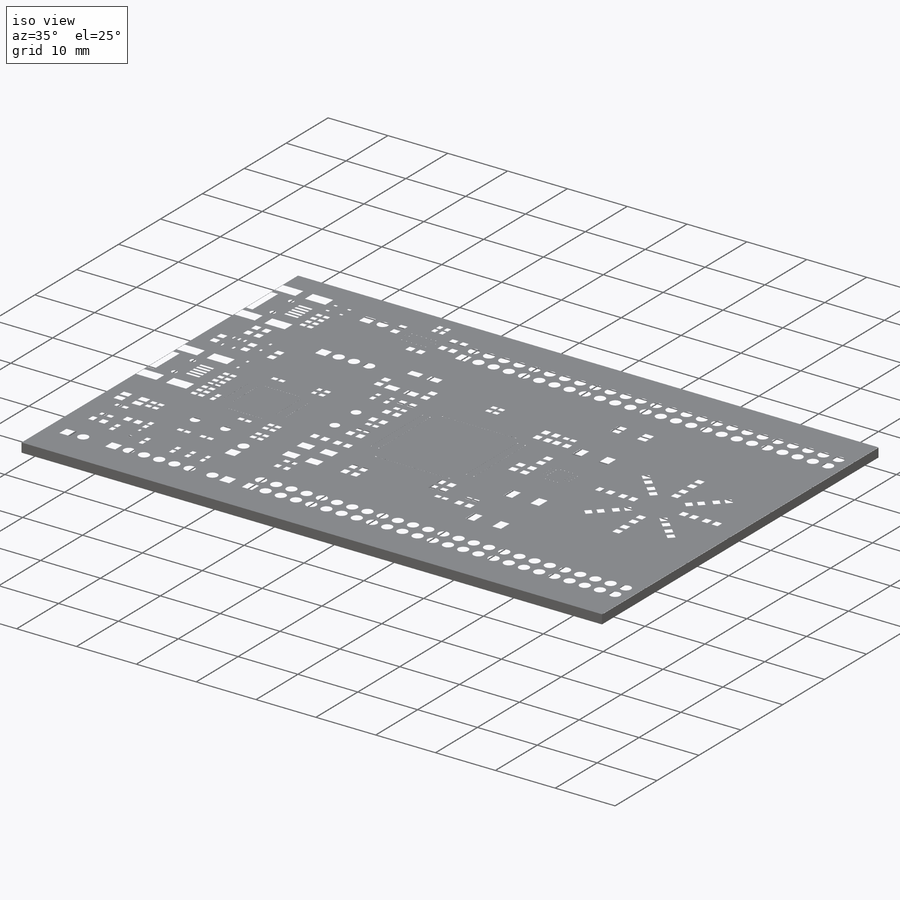
[diagram: iso view]
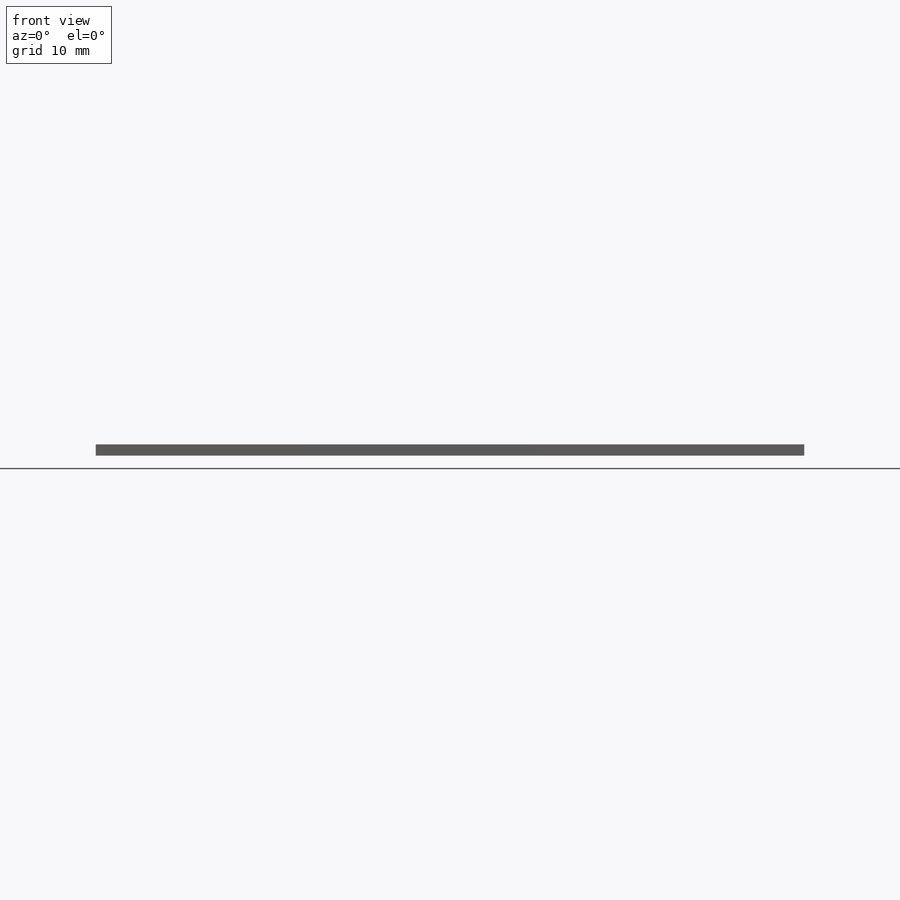
[diagram: front view]
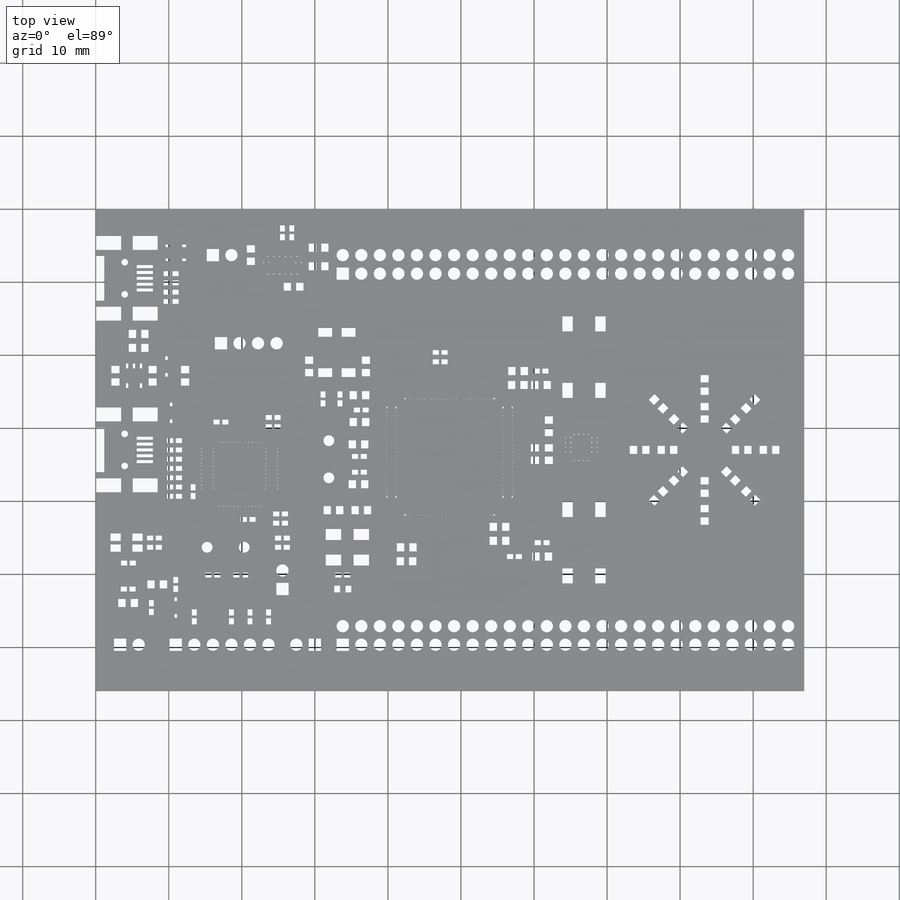
[diagram: top view]
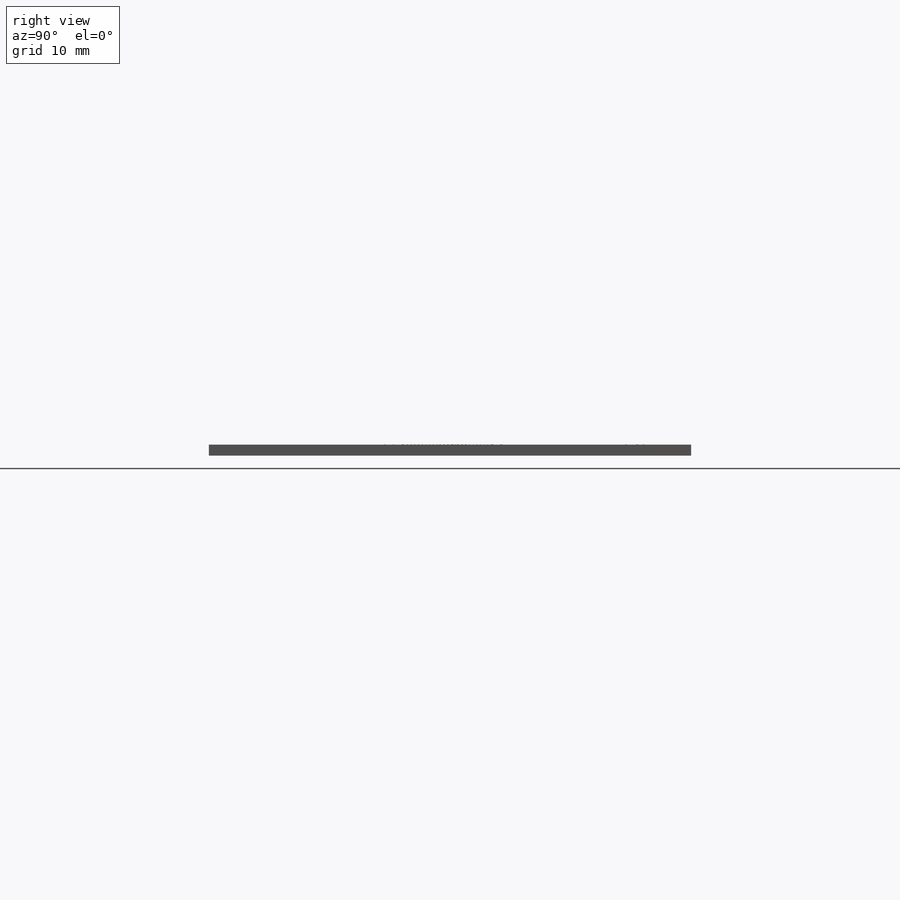
[diagram: right view]
SOLIDWORKS PART (.sldprt)
format: sldprt  version: not decoded by parser v0  size: 2,737,664 bytes
history: native  units: mm
features: sketch x643, plane x3, extrude x2, material x1, cut_extrude x1 + 2 further entries (+10 scaffold rows collapsed)
feature tree (662):
  scaffold x10  (default folders/planes/origin — collapsed)
  material  "Материал <не указан>"
  plane  "Спереди"
  plane  "Сверху"
  plane  "Справа"
  sketch  "Эскиз1"  dims[c1.D1=~102.627005mm c2.D1=97.0mm c2.D2=66.0mm]
  extrude  "Бобышка-Вытянуть1"  Depth=1.5mm
  "Эскиз2"
  sketch  "D14-2"
  sketch  "D15-1"  dims[D15=0.0mm]
  sketch  "D15-2"
  sketch  "D15-3"
  sketch  "D15-4"
  sketch  "D16-1"  dims[D16=0.0mm]
  sketch  "D16-2"
  sketch  "D16-3"
  sketch  "D16-4"
  sketch  "D14-3"
  sketch  "D14-4"
  sketch  "D17-1"  dims[D17=0.0mm]
  sketch  "D17-2"
  sketch  "D18-1"  dims[D18=0.0mm]
  sketch  "D19-1"  dims[D19=0.0mm]
  sketch  "D19-2"
  sketch  "D19-3"
  sketch  "D19-4"
  sketch  "D19-5"
  sketch  "D19-6"
  sketch  "D19-7"
  sketch  "D19-8"
  sketch  "D19-9"
  sketch  "D19-10"
  sketch  "D18-2"
  sketch  "D20-1"  dims[D20=0.0mm]
  sketch  "D21-1"  dims[D21=0.0mm]
  sketch  "D21-2"
  sketch  "D21-3"
  sketch  "D21-4"
  sketch  "D21-5"
  sketch  "D21-6"
  sketch  "D21-7"
  sketch  "D21-8"
  sketch  "D21-9"
  sketch  "D21-10"
  sketch  "D20-2"
  sketch  "D18-3"
  sketch  "D19-11"
  sketch  "D19-12"
  sketch  "D19-13"
  sketch  "D19-14"
  sketch  "D19-15"
  sketch  "D19-16"
  sketch  "D19-17"
  sketch  "D19-18"
  sketch  "D19-19"
  sketch  "D19-20"
  sketch  "D18-4"
  sketch  "D20-3"
  sketch  "D21-11"
  sketch  "D21-12"
  sketch  "D21-13"
  sketch  "D21-14"
  sketch  "D21-15"
  sketch  "D21-16"
  sketch  "D21-17"
  sketch  "D21-18"
  sketch  "D21-19"
  sketch  "D21-20"
  sketch  "D20-4"
  sketch  "D22-1"  dims[D22=0.0mm]
  sketch  "D23-1"  dims[D23=0.0mm]
  sketch  "D23-2"
  sketch  "D23-3"
  sketch  "D23-4"
  sketch  "D23-5"
  sketch  "D14-5"
  sketch  "D14-6"
  sketch  "D14-7"
  sketch  "D14-8"
  sketch  "D16-5"
  sketch  "D16-6"
  sketch  "D14-9"
  sketch  "D14-10"
  sketch  "D16-7"
  sketch  "D16-8"
  sketch  "D24-1"  dims[D24=0.0mm]
  sketch  "D24-2"
  sketch  "D25-1"  dims[D25=0.0mm]
  sketch  "D25-2"
  sketch  "D14-11"
  sketch  "D14-12"
  sketch  "D26-1"  dims[D26=0.0mm]
  sketch  "D26-2"
  sketch  "D25-3"
  sketch  "D25-4"
  sketch  "D22-2"
  sketch  "D23-6"
  sketch  "D16-9"
  sketch  "D16-10"
  sketch  "D16-11"
  sketch  "D16-12"
  sketch  "D24-3"
  sketch  "D24-4"
  sketch  "D16-13"
  sketch  "D16-14"
  sketch  "D25-5"
  sketch  "D25-6"
  sketch  "D25-7"
  sketch  "D25-8"
  sketch  "D16-15"
  sketch  "D16-16"
  sketch  "D16-17"
  sketch  "D16-18"
  sketch  "D27-1"  dims[D27=0.0mm]
  sketch  "D23-7"
  sketch  "D24-5"
  sketch  "D24-6"
  sketch  "D25-9"
  sketch  "D25-10"
  sketch  "D14-13"
  sketch  "D14-14"
  sketch  "D28-1"  dims[D28=0.0mm]
  sketch  "D28-2"
  sketch  "D16-19"
  sketch  "D16-20"
  sketch  "D16-21"
  sketch  "D16-22"
  sketch  "D25-11"
  sketch  "D25-12"
  sketch  "D16-23"
  sketch  "D16-24"
  sketch  "D25-13"
  sketch  "D25-14"
  sketch  "D14-15"
  sketch  "D14-16"
  sketch  "D14-17"
  sketch  "D14-18"
  sketch  "D25-15"
  sketch  "D25-16"
  sketch  "D16-25"
  sketch  "D16-26"
  sketch  "D16-27"
  sketch  "D16-28"
  sketch  "D14-19"
  sketch  "D14-20"
  sketch  "D29-1"  dims[D29=0.0mm]
  sketch  "D29-2"
  sketch  "D29-3"
  sketch  "D29-4"
  sketch  "D29-5"
  sketch  "D29-6"
  sketch  "D30-1"  dims[D30=0.0mm]
  sketch  "D29-7"
  sketch  "D29-8"
  sketch  "D29-9"
  sketch  "D29-10"
  sketch  "D29-11"
  sketch  "D29-12"
  sketch  "D30-2"
  sketch  "D25-17"
  sketch  "D25-18"
  sketch  "D14-21"
  sketch  "D14-22"
  sketch  "D22-3"
  sketch  "D23-8"
  sketch  "D23-9"
  sketch  "D23-10"
  sketch  "D23-11"
  sketch  "D23-12"
  sketch  "D23-13"
  sketch  "D23-14"
  sketch  "D23-15"
  sketch  "D23-16"
  sketch  "D23-17"
  sketch  "D23-18"
  sketch  "D23-19"
  sketch  "D23-20"
  sketch  "D23-21"
  sketch  "D23-22"
  sketch  "D23-23"
  sketch  "D23-24"
  sketch  "D23-25"
  sketch  "D23-26"
  sketch  "D23-27"
  sketch  "D23-28"
  sketch  "D23-29"
  sketch  "D23-30"
  sketch  "D23-31"
  sketch  "D23-32"
  sketch  "D23-33"
  sketch  "D23-34"
  sketch  "D23-35"
  sketch  "D23-36"
  sketch  "D23-37"
  sketch  "D23-38"
  sketch  "D23-39"
  sketch  "D23-40"
  sketch  "D23-41"
  sketch  "D23-42"
  sketch  "D23-43"
  sketch  "D23-44"
  sketch  "D23-45"
  sketch  "D23-46"
  sketch  "D23-47"
  sketch  "D23-48"
  sketch  "D23-49"
  sketch  "D23-50"
  sketch  "D23-51"
  sketch  "D23-52"
  sketch  "D23-53"
  sketch  "D23-54"
  sketch  "D23-55"
  sketch  "D23-56"
  sketch  "D14-23"
  sketch  "D14-24"
  sketch  "D22-4"
  sketch  "D23-57"
  sketch  "D23-58"
  sketch  "D23-59"
  sketch  "D22-5"
  sketch  "D23-60"
  sketch  "D24-7"
  sketch  "D24-8"
  sketch  "D14-25"
  sketch  "D14-26"
  sketch  "D29-13"
  sketch  "D29-14"
  sketch  "D29-15"
  sketch  "D29-16"
  sketch  "D30-3"
  sketch  "D30-4"
  sketch  "D30-5"
  sketch  "D30-6"
  sketch  "D29-17"
  sketch  "D29-18"
  sketch  "D29-19"
  sketch  "D29-20"
  sketch  "D30-7"
  sketch  "D30-8"
  sketch  "D30-9"
  sketch  "D30-10"
  sketch  "D16-29"
  sketch  "D16-30"
  sketch  "D22-6"
  sketch  "D23-61"
  sketch  "D23-62"
  sketch  "D23-63"
  sketch  "D23-64"
  sketch  "D23-65"
  sketch  "D23-66"
  sketch  "D23-67"
  sketch  "D23-68"
  sketch  "D23-69"
  sketch  "D23-70"
  sketch  "D23-71"
  sketch  "D23-72"
  sketch  "D23-73"
  sketch  "D23-74"
  sketch  "D23-75"
  sketch  "D23-76"
  sketch  "D23-77"
  sketch  "D23-78"
  sketch  "D23-79"
  sketch  "D23-80"
  sketch  "D23-81"
  sketch  "D23-82"
  sketch  "D23-83"
  sketch  "D23-84"
  sketch  "D23-85"
  sketch  "D23-86"
  sketch  "D23-87"
  sketch  "D23-88"
  sketch  "D23-89"
  sketch  "D23-90"
  sketch  "D23-91"
  sketch  "D23-92"
  sketch  "D23-93"
  sketch  "D23-94"
  sketch  "D23-95"
  sketch  "D23-96"
  sketch  "D23-97"
  sketch  "D23-98"
  sketch  "D23-99"
  sketch  "D23-100"
  sketch  "D23-101"
  sketch  "D23-102"
  sketch  "D23-103"
  sketch  "D23-104"
  sketch  "D23-105"
  sketch  "D23-106"
  sketch  "D23-107"
  sketch  "D23-108"
  sketch  "D23-109"
  sketch  "D31-1"  dims[D31=0.0mm]
  sketch  "D32-1"  dims[D32=0.0mm]
  sketch  "D32-2"
  sketch  "D32-3"
  sketch  "D32-4"
  sketch  "D32-5"
  sketch  "D32-6"
  sketch  "D32-7"
  sketch  "D32-8"
  sketch  "D32-9"
  sketch  "D32-10"
  sketch  "D32-11"
  sketch  "D32-12"
  sketch  "D32-13"
  sketch  "D32-14"
  sketch  "D32-15"
  sketch  "D32-16"
  sketch  "D32-17"
  sketch  "D32-18"
  sketch  "D32-19"
  sketch  "D32-20"
  sketch  "D32-21"
  sketch  "D32-22"
  sketch  "D32-23"
  sketch  "D31-2"
  sketch  "D33-1"  dims[D33=0.0mm]
  sketch  "D34-1"  dims[D34=0.0mm]
  sketch  "D34-2"
  sketch  "D34-3"
  sketch  "D34-4"
  sketch  "D34-5"
  sketch  "D34-6"
  sketch  "D34-7"
  sketch  "D34-8"
  sketch  "D34-9"
  sketch  "D34-10"
  sketch  "D34-11"
  sketch  "D34-12"
  sketch  "D34-13"
  sketch  "D34-14"
  sketch  "D34-15"
  sketch  "D34-16"
  sketch  "D34-17"
  sketch  "D34-18"
  sketch  "D34-19"
  sketch  "D34-20"
  sketch  "D34-21"
  sketch  "D34-22"
  sketch  "D34-23"
  sketch  "D33-2"
  sketch  "D31-3"
  sketch  "D32-24"
  sketch  "D32-25"
  sketch  "D32-26"
  sketch  "D32-27"
  sketch  "D32-28"
  sketch  "D32-29"
  sketch  "D32-30"
  sketch  "D32-31"
  sketch  "D32-32"
  sketch  "D32-33"
  sketch  "D32-34"
  sketch  "D32-35"
  sketch  "D32-36"
  sketch  "D32-37"
  sketch  "D32-38"
  sketch  "D32-39"
  sketch  "D32-40"
  sketch  "D32-41"
  sketch  "D32-42"
  sketch  "D32-43"
  sketch  "D32-44"
  sketch  "D32-45"
  sketch  "D32-46"
  sketch  "D31-4"
  sketch  "D33-3"
  sketch  "D34-24"
  sketch  "D34-25"
  sketch  "D34-26"
  sketch  "D34-27"
  sketch  "D34-28"
  sketch  "D34-29"
  sketch  "D34-30"
  sketch  "D34-31"
  sketch  "D34-32"
  sketch  "D34-33"
  sketch  "D34-34"
  sketch  "D34-35"
  sketch  "D34-36"
  sketch  "D34-37"
  sketch  "D34-38"
  sketch  "D34-39"
  sketch  "D34-40"
  sketch  "D34-41"
  sketch  "D34-42"
  sketch  "D34-43"
  sketch  "D34-44"
  sketch  "D34-45"
  sketch  "D34-46"
  sketch  "D33-4"
  sketch  "D22-7"
  sketch  "D23-110"
  sketch  "D24-9"
  sketch  "D24-10"
  sketch  "D35-1"  dims[D35=0.0mm]
  sketch  "D35-2"
  sketch  "D35-3"
  sketch  "D35-4"
  sketch  "D35-5"
  sketch  "D24-11"
  sketch  "D24-12"
  sketch  "D14-27"
  sketch  "D14-28"
  sketch  "D24-13"
  sketch  "D24-14"
  sketch  "D14-29"
  sketch  "D14-30"
  sketch  "D17-3"
  sketch  "D17-4"
  sketch  "D16-31"
  sketch  "D16-32"
  sketch  "D16-33"
  sketch  "D16-34"
  sketch  "D16-35"
  sketch  "D16-36"
  sketch  "D16-37"
  sketch  "D16-38"
  sketch  "D36-1"  dims[D36=0.0mm]
  sketch  "D36-2"
  sketch  "D36-3"
  sketch  "D36-4"
  sketch  "D36-5"
  sketch  "D37-1"  dims[D37=0.0mm]
  sketch  "D37-2"
  sketch  "D37-3"
  sketch  "D37-4"
  sketch  "D38-1"  dims[D38=0.0mm]
  sketch  "D39-1"  dims[D39=0.0mm]
  sketch  "D39-2"
  sketch  "D40-1"  dims[D40=0.0mm]
  sketch  "D40-2"
  sketch  "D17-5"
  sketch  "D17-6"
  sketch  "D40-3"
  sketch  "D40-4"
  sketch  "D41-1"  dims[D41=0.0mm]
  sketch  "D41-2"
  sketch  "D41-3"
  sketch  "D41-4"
  sketch  "D41-5"
  sketch  "D41-6"
  sketch  "D41-7"
  sketch  "D41-8"
  sketch  "D14-31"
  sketch  "D14-32"
  sketch  "D24-15"
  sketch  "D24-16"
  sketch  "D26-3"
  sketch  "D26-4"
  sketch  "D24-17"
  sketch  "D24-18"
  sketch  "D25-19"
  sketch  "D25-20"
  sketch  "D16-39"
  sketch  "D16-40"
  sketch  "D14-33"
  sketch  "D14-34"
  sketch  "D14-35"
  sketch  "D14-36"
  sketch  "D16-41"
  sketch  "D16-42"
  sketch  "D16-43"
  sketch  "D16-44"
  sketch  "D28-3"
  sketch  "D28-4"
  sketch  "D16-45"
  sketch  "D16-46"
  sketch  "D16-47"
  sketch  "D16-48"
  sketch  "D14-37"
  sketch  "D14-38"
  sketch  "D25-21"
  sketch  "D25-22"
  sketch  "D14-39"
  sketch  "D14-40"
  sketch  "D16-49"
  sketch  "D16-50"
  sketch  "D16-51"
  sketch  "D16-52"
  sketch  "D16-53"
  sketch  "D16-54"
  sketch  "D16-55"
  sketch  "D16-56"
  sketch  "D16-57"
  sketch  "D16-58"
  sketch  "D16-59"
  sketch  "D16-60"
  sketch  "D16-61"
  sketch  "D16-62"
  sketch  "D16-63"
  sketch  "D16-64"
  sketch  "D16-65"
  sketch  "D16-66"
  sketch  "D14-41"
  sketch  "D14-42"
  sketch  "D16-67"
  sketch  "D16-68"
  sketch  "D42-1"  dims[D42=0.0mm]
  sketch  "D42-2"
  sketch  "D14-43"
  sketch  "D14-44"
  sketch  "D43-1"  dims[D43=0.0mm]
  sketch  "D43-2"
  sketch  "D24-19"
  sketch  "D24-20"
  sketch  "D24-21"
  sketch  "D24-22"
  sketch  "D42-3"
  sketch  "D42-4"
  sketch  "D24-23"
  sketch  "D24-24"
  sketch  "D14-45"
  sketch  "D14-46"
  sketch  "D24-25"
  sketch  "D24-26"
  sketch  "D43-3"
  sketch  "D43-4"
  sketch  "D42-5"
  sketch  "D42-6"
  sketch  "D42-7"
  sketch  "D42-8"
  sketch  "D43-5"
  sketch  "D43-6"
  sketch  "D43-7"
  sketch  "D43-8"
  sketch  "D14-47"
  sketch  "D14-48"
  sketch  "D14-49"
  sketch  "D14-50"
  sketch  "D44-1"  dims[D44=0.0mm]
  sketch  "D44-2"
  sketch  "D45-1"  dims[D45=0.0mm]
  sketch  "D45-2"
  sketch  "D45-3"
  sketch  "D45-4"
  sketch  "D36-6"
  sketch  "D36-7"
  sketch  "D36-8"
  sketch  "D36-9"
  sketch  "D36-10"
  sketch  "D37-5"
  sketch  "D37-6"
  sketch  "D37-7"
  sketch  "D37-8"
  sketch  "D38-2"
  sketch  "D39-3"
  sketch  "D39-4"  dims[D1=~66.000122mm D2=~97.00006mm]
  "Эскиз35"
  sketch  "D23-111"
  sketch  "D23-112"
  sketch  "D23-113"
  sketch  "D23-114"
  sketch  "D23-115"
  sketch  "D23-116"
  sketch  "D23-117"
  sketch  "D23-118"
  sketch  "D22-8"
  sketch  "D23-119"
  sketch  "D23-120"
  sketch  "D23-121"
  sketch  "D23-122"
  sketch  "D23-123"
  sketch  "D23-124"
  sketch  "D23-125"
  sketch  "D23-126"
  sketch  "D23-127"
  sketch  "D23-128"
  sketch  "D23-129"
  sketch  "D23-130"
  sketch  "D23-131"
  sketch  "D23-132"
  sketch  "D23-133"
  sketch  "D23-136"
  sketch  "D23-137"
  sketch  "D23-138"
  sketch  "D23-139"
  sketch  "D23-140"
  sketch  "D23-143"
  sketch  "D23-144"
  sketch  "D23-145"
  sketch  "D23-147"
  sketch  "D23-148"
  sketch  "D23-149"
  sketch  "D23-150"
  sketch  "D23-151"
  sketch  "D23-152"
  sketch  "D23-153"
  sketch  "D23-154"
  sketch  "D23-155"
  sketch  "D23-156"
  sketch  "D23-157"
  sketch  "D23-158"
  sketch  "D23-159"
  sketch  "D23-160"
  sketch  "D23-161"
  sketch  "D23-162"
  sketch  "D23-165"
  sketch  "D23-166"
  sketch  "D23-167"
  sketch  "D23-168"
  sketch  "D23-172"
  sketch  "D23-173"
  sketch  "D23-174"
  sketch  "D23-175"
  sketch  "D23-176"
  sketch  "D23-177"
  sketch  "D23-179"
  sketch  "D23-180"
  sketch  "D23-181"
  sketch  "D23-182"
  sketch  "D23-183"
  sketch  "D23-184"
  sketch  "D23-185"
  sketch  "D23-186"
  sketch  "D23-187"
  sketch  "D23-188"
  sketch  "D23-189"
  sketch  "D23-190"
  sketch  "D23-191"
  sketch  "D23-192"
  sketch  "D23-193"
  sketch  "D23-194"
  sketch  "D23-196"
  sketch  "D23-197"
  sketch  "D23-198"
  sketch  "D22-14"
  sketch  "D23-199"
  sketch  "D23-200"
  sketch  "D23-201"
  sketch  "D23-202"
  sketch  "D23-203"
  sketch  "D23-204"
  sketch  "D23-205"
  sketch  "D23-206"
  sketch  "D23-207"
  sketch  "D23-208"
  sketch  "D23-209"
  sketch  "D23-210"
  sketch  "D23-211"
  sketch  "D23-212"
  sketch  "D23-213"
  sketch  "D23-214"
  sketch  "D23-215"
  sketch  "D23-216"
  sketch  "D23-217"
  sketch  "D23-218"
  sketch  "D23-219"
  sketch  "D23-220"  dims[D1=~66.000122mm D2=~97.00006mm]
  extrude  "Бобышка-Вытянуть2"  Depth=0.035mm
  cut_extrude  "Вырез-Вытянуть1"  [1 undecoded]
decode coverage: 36 of 646 modeling features carry decoded parameters; 2 rows unclassified (native names shown)
note: ~ marks probable driven/reference dimensions
note: 1 parameter value undecoded
note: suppression state not decoded; provenance and decode notes live in map.json
